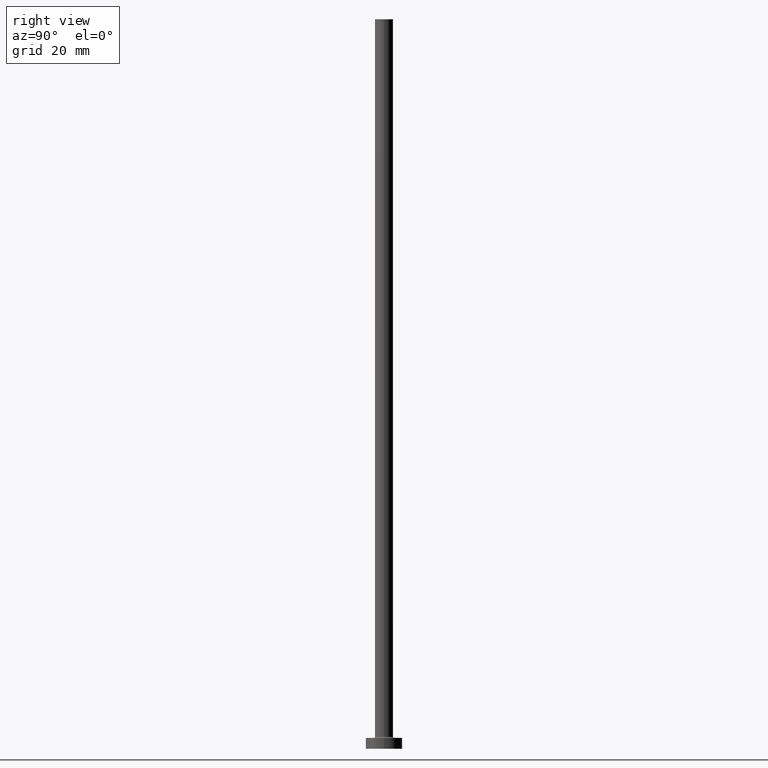
[diagram: clean part render]
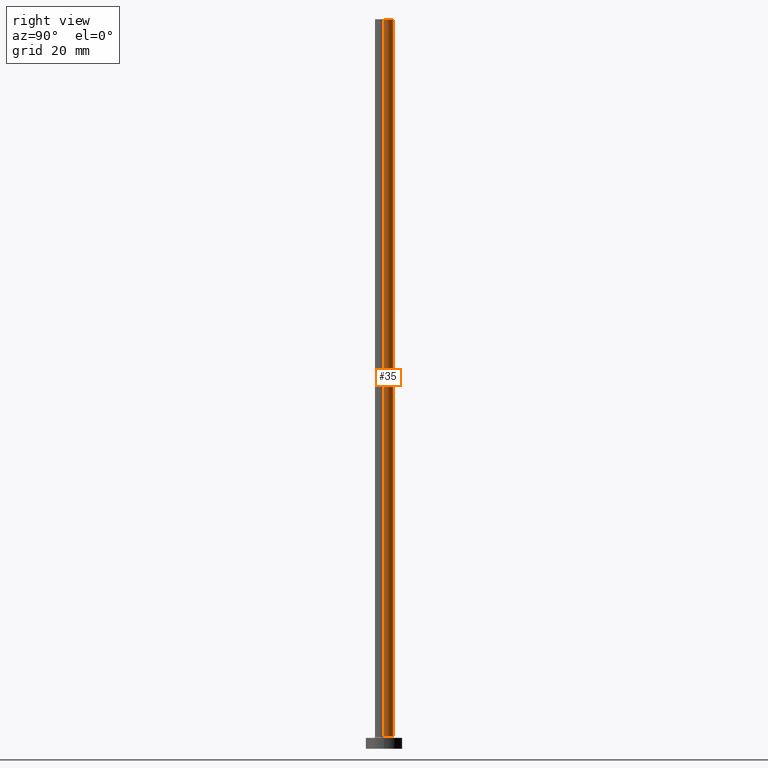
[diagram: same view with one face highlighted and labeled with its STEP entity id]
A machine part, right view. The second image highlights one B-rep face of the part: STEP entity #35.
In plain terms, the highlighted cylindrical surface (edge-blend (fillet) strip) has radius 2.5 mm, axis along (-0, -0, -1).
Its self-contained STEP definition (entity closure, byte-faithful):
#2 = DIRECTION ( 'NONE',  ( 1.000000000000000000, 0.000000000000000000, 0.000000000000000000 ) ) ;
#32 = VECTOR ( 'NONE', #241, 1000.000000000000000 ) ;
#33 = CARTESIAN_POINT ( 'NONE',  ( -2.500000000000000000, 0.000000000000000000, 3.299999999999997158 ) ) ;
#35 = ADVANCED_FACE ( 'NONE', ( #144 ), #291, .T. ) ;
#40 = DIRECTION ( 'NONE',  ( 1.000000000000000000, 0.000000000000000000, 0.000000000000000000 ) ) ;
#48 = VERTEX_POINT ( 'NONE', #81 ) ;
#63 = LINE ( 'NONE', #193, #32 ) ;
#81 = CARTESIAN_POINT ( 'NONE',  ( 2.500000000000000000, 3.061616997868383141E-16, 3.299999999999997158 ) ) ;
#84 = DIRECTION ( 'NONE',  ( 0.000000000000000000, 0.000000000000000000, 1.000000000000000000 ) ) ;
#88 = CARTESIAN_POINT ( 'NONE',  ( -2.500000000000000000, 0.000000000000000000, 200.0000000000000000 ) ) ;
#90 = VERTEX_POINT ( 'NONE', #33 ) ;
#96 = EDGE_CURVE ( 'NONE', #244, #90, #397, .T. ) ;
#107 = ORIENTED_EDGE ( 'NONE', *, *, #390, .F. ) ;
#115 = DIRECTION ( 'NONE',  ( -0.000000000000000000, -0.000000000000000000, -1.000000000000000000 ) ) ;
#121 = CIRCLE ( 'NONE', #170, 2.500000000000000000 ) ;
#129 = CIRCLE ( 'NONE', #374, 2.500000000000000000 ) ;
#144 = FACE_OUTER_BOUND ( 'NONE', #154, .T. ) ;
#154 = EDGE_LOOP ( 'NONE', ( #107, #362, #238, #342 ) ) ;
#170 = AXIS2_PLACEMENT_3D ( 'NONE', #230, #84, #2 ) ;
#193 = CARTESIAN_POINT ( 'NONE',  ( 2.500000000000000000, 3.061616997868383141E-16, 200.0000000000000000 ) ) ;
#198 = CARTESIAN_POINT ( 'NONE',  ( 2.500000000000000000, 3.061616997868383141E-16, 200.0000000000000000 ) ) ;
#201 = AXIS2_PLACEMENT_3D ( 'NONE', #395, #115, #356 ) ;
#211 = CARTESIAN_POINT ( 'NONE',  ( -2.500000000000000000, 0.000000000000000000, 200.0000000000000000 ) ) ;
#227 = CARTESIAN_POINT ( 'NONE',  ( 0.000000000000000000, 0.000000000000000000, 3.299999999999997158 ) ) ;
#230 = CARTESIAN_POINT ( 'NONE',  ( 0.000000000000000000, 0.000000000000000000, 200.0000000000000000 ) ) ;
#238 = ORIENTED_EDGE ( 'NONE', *, *, #412, .T. ) ;
#240 = VECTOR ( 'NONE', #361, 1000.000000000000000 ) ;
#241 = DIRECTION ( 'NONE',  ( -0.000000000000000000, -0.000000000000000000, -1.000000000000000000 ) ) ;
#244 = VERTEX_POINT ( 'NONE', #211 ) ;
#245 = EDGE_CURVE ( 'NONE', #284, #48, #63, .T. ) ;
#284 = VERTEX_POINT ( 'NONE', #198 ) ;
#291 = CYLINDRICAL_SURFACE ( 'NONE', #201, 2.500000000000000000 ) ;
#319 = DIRECTION ( 'NONE',  ( 0.000000000000000000, 0.000000000000000000, 1.000000000000000000 ) ) ;
#342 = ORIENTED_EDGE ( 'NONE', *, *, #96, .F. ) ;
#356 = DIRECTION ( 'NONE',  ( -1.000000000000000000, 0.000000000000000000, 0.000000000000000000 ) ) ;
#361 = DIRECTION ( 'NONE',  ( -0.000000000000000000, -0.000000000000000000, -1.000000000000000000 ) ) ;
#362 = ORIENTED_EDGE ( 'NONE', *, *, #245, .T. ) ;
#374 = AXIS2_PLACEMENT_3D ( 'NONE', #227, #319, #40 ) ;
#390 = EDGE_CURVE ( 'NONE', #284, #244, #121, .T. ) ;
#395 = CARTESIAN_POINT ( 'NONE',  ( 0.000000000000000000, 0.000000000000000000, 200.0000000000000000 ) ) ;
#397 = LINE ( 'NONE', #88, #240 ) ;
#412 = EDGE_CURVE ( 'NONE', #48, #90, #129, .T. ) ;